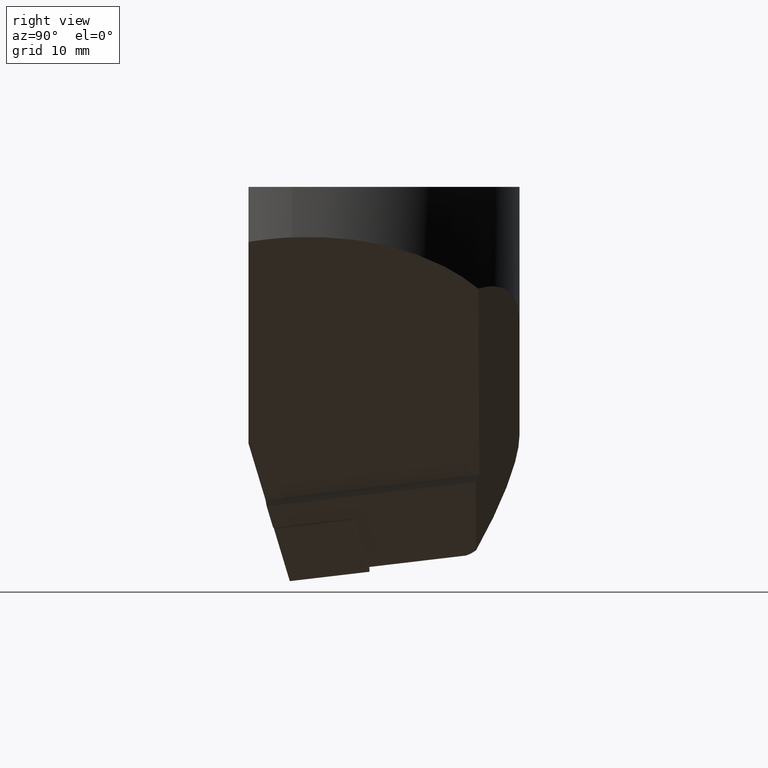
[diagram: clean part render]
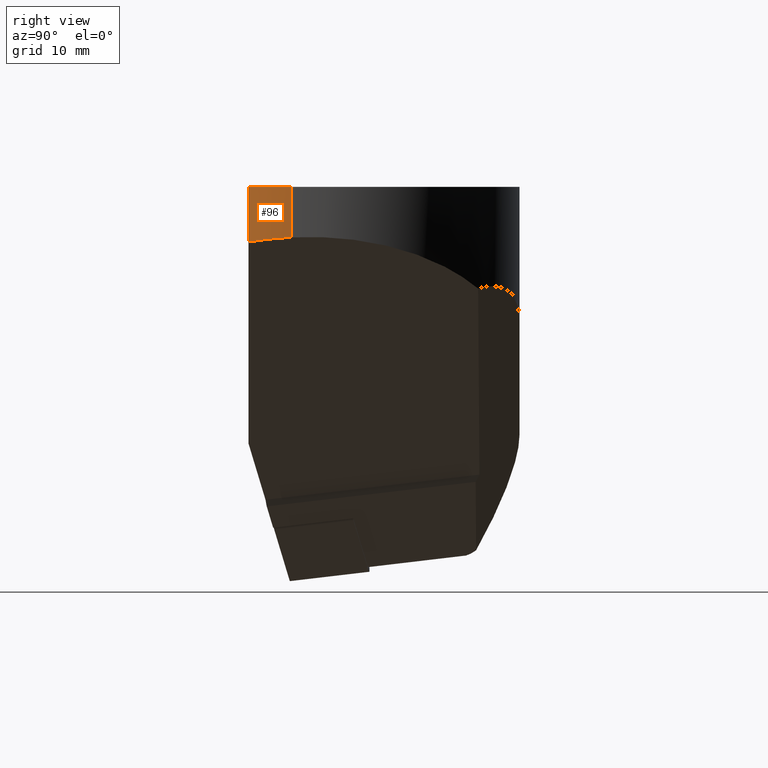
[diagram: same view with one face highlighted and labeled with its STEP entity id]
A machine part, right view. The second image highlights one B-rep face of the part: STEP entity #96.
In plain terms, the highlighted cylindrical surface (partial cylindrical patch) has radius 31.5 mm, axis along (0, -0, 1).
Its self-contained STEP definition (entity closure, byte-faithful):
#96=ADVANCED_FACE('',(#148),#149,.T.);
#148=FACE_OUTER_BOUND('',#208,.T.);
#149=CYLINDRICAL_SURFACE('',#209,31.5);
#208=EDGE_LOOP('',(#407,#408,#409,#410));
#209=AXIS2_PLACEMENT_3D('',#411,#412,#413);
#407=ORIENTED_EDGE('',*,*,#531,.T.);
#408=ORIENTED_EDGE('',*,*,#543,.T.);
#409=ORIENTED_EDGE('',*,*,#544,.T.);
#410=ORIENTED_EDGE('',*,*,#545,.F.);
#411=CARTESIAN_POINT('',(9.99200722162641E-015,4.44089209850063E-015,-1.59042803573396));
#412=DIRECTION('',(0.0,-0.0,1.0));
#413=DIRECTION('',(-0.095677020168762,-0.9954124310112,0.0));
#531=EDGE_CURVE('',#650,#648,#651,.T.);
#543=EDGE_CURVE('',#648,#670,#671,.T.);
#544=EDGE_CURVE('',#670,#672,#673,.T.);
#545=EDGE_CURVE('',#650,#672,#674,.T.);
#648=VERTEX_POINT('',#850);
#650=VERTEX_POINT('',#852);
#651=ELLIPSE('',#853,37.09599962889,31.5);
#670=VERTEX_POINT('',#902);
#671=LINE('',#903,#904);
#672=VERTEX_POINT('',#905);
#673=CIRCLE('',#906,31.5);
#674=LINE('',#907,#908);
#850=CARTESIAN_POINT('',(31.4999999999999,-2.826306E-015,-6.98133008261455));
#852=CARTESIAN_POINT('',(30.9232921921325,-5.99999999999999,-7.62357561020945));
#853=AXIS2_PLACEMENT_3D('',#1015,#1016,#1017);
#902=CARTESIAN_POINT('',(31.5,-2.081153E-015,0.0));
#903=CARTESIAN_POINT('',(31.4999999999999,-2.826306E-015,-7.30989465134402));
#904=VECTOR('',#1037,7.30989465134402);
#905=CARTESIAN_POINT('',(30.9232921921325,-5.99999999999999,0.0));
#906=AXIS2_PLACEMENT_3D('',#1038,#1039,#1040);
#907=CARTESIAN_POINT('',(30.9232921921325,-5.99999999999999,-7.9521401776993));
#908=VECTOR('',#1041,7.9521401776993);
#1015=CARTESIAN_POINT('',(9.99200722162641E-015,4.44089209850063E-015,-26.5167053847079));
#1016=DIRECTION('',(-0.526616764544051,-0.0402762685221395,0.849148164630347));
#1017=DIRECTION('',(-0.846675516030686,-0.064754737658794,-0.528154706979794));
#1037=DIRECTION('',(0.0,0.0,1.0));
#1038=CARTESIAN_POINT('',(0.0,6.123234E-016,0.0));
#1039=DIRECTION('',(0.0,0.0,-1.0));
#1040=DIRECTION('',(-1.0,0.0,0.0));
#1041=DIRECTION('',(0.0,0.0,1.0));